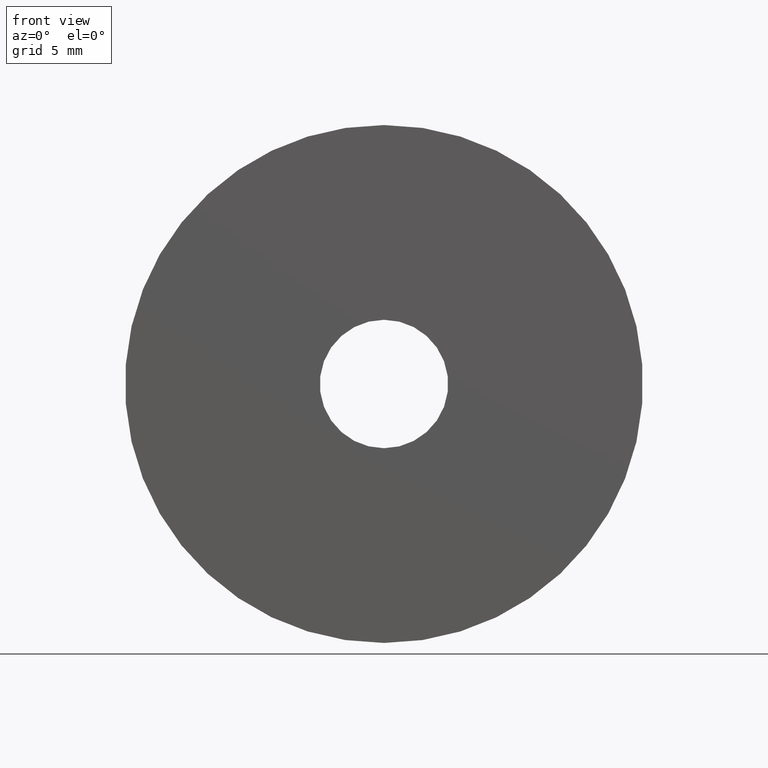
[diagram: clean part render]
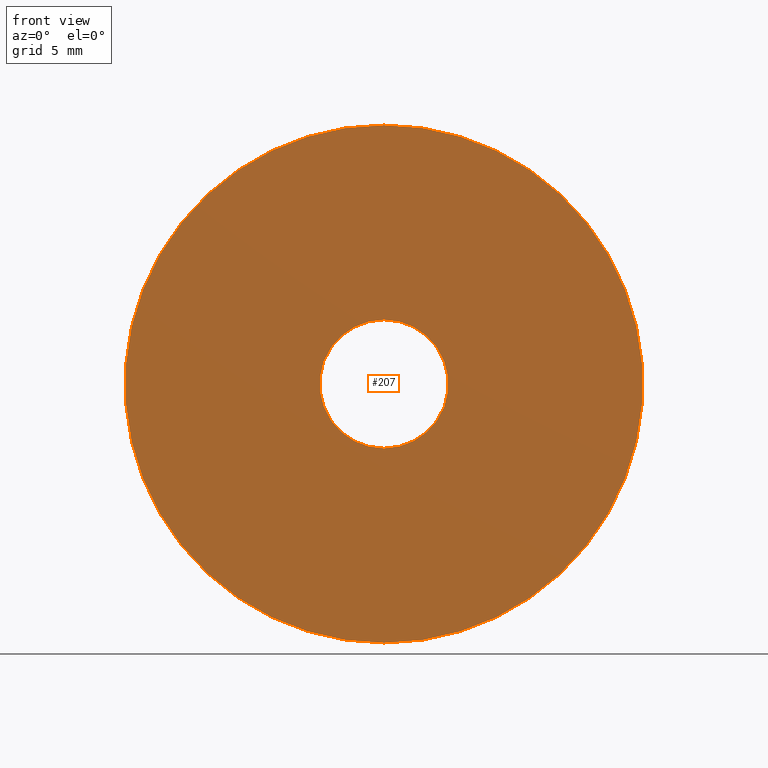
[diagram: same view with one face highlighted and labeled with its STEP entity id]
A machine part, front view. The second image highlights one B-rep face of the part: STEP entity #207.
In plain terms, the highlighted planar face has unit normal (0, 1, 0).
Its self-contained STEP definition (entity closure, byte-faithful):
#9 = ORIENTED_EDGE ( 'NONE', *, *, #94, .F. ) ;
#15 = CIRCLE ( 'NONE', #194, 12.50000000000000000 ) ;
#17 = DIRECTION ( 'NONE',  ( 0.000000000000000000, -0.000000000000000000, 1.000000000000000000 ) ) ;
#18 = CARTESIAN_POINT ( 'NONE',  ( 0.000000000000000000, -0.05000000000000000278, 0.000000000000000000 ) ) ;
#25 = ORIENTED_EDGE ( 'NONE', *, *, #47, .T. ) ;
#35 = PLANE ( 'NONE',  #145 ) ;
#37 = VERTEX_POINT ( 'NONE', #66 ) ;
#47 = EDGE_CURVE ( 'NONE', #49, #221, #119, .T. ) ;
#48 = CARTESIAN_POINT ( 'NONE',  ( 1.530808498934191521E-15, -0.05000000000000000278, 12.50000000000000000 ) ) ;
#49 = VERTEX_POINT ( 'NONE', #242 ) ;
#55 = VERTEX_POINT ( 'NONE', #48 ) ;
#66 = CARTESIAN_POINT ( 'NONE',  ( 0.000000000000000000, -0.05000000000000000278, -12.50000000000000000 ) ) ;
#88 = DIRECTION ( 'NONE',  ( 0.000000000000000000, 1.000000000000000000, 0.000000000000000000 ) ) ;
#91 = DIRECTION ( 'NONE',  ( 0.000000000000000000, 0.000000000000000000, 1.000000000000000000 ) ) ;
#93 = DIRECTION ( 'NONE',  ( 0.000000000000000000, 1.000000000000000000, 0.000000000000000000 ) ) ;
#94 = EDGE_CURVE ( 'NONE', #37, #55, #15, .T. ) ;
#110 = DIRECTION ( 'NONE',  ( 0.000000000000000000, 1.000000000000000000, 0.000000000000000000 ) ) ;
#116 = DIRECTION ( 'NONE',  ( 0.000000000000000000, 0.000000000000000000, 1.000000000000000000 ) ) ;
#119 = CIRCLE ( 'NONE', #205, 3.100000000000000089 ) ;
#120 = DIRECTION ( 'NONE',  ( 0.000000000000000000, 1.000000000000000000, 0.000000000000000000 ) ) ;
#135 = ORIENTED_EDGE ( 'NONE', *, *, #226, .F. ) ;
#143 = FACE_BOUND ( 'NONE', #190, .T. ) ;
#145 = AXIS2_PLACEMENT_3D ( 'NONE', #227, #88, #17 ) ;
#146 = DIRECTION ( 'NONE',  ( 0.000000000000000000, 0.000000000000000000, 1.000000000000000000 ) ) ;
#164 = FACE_OUTER_BOUND ( 'NONE', #247, .T. ) ;
#172 = CARTESIAN_POINT ( 'NONE',  ( 0.000000000000000000, -0.05000000000000000278, 0.000000000000000000 ) ) ;
#183 = CIRCLE ( 'NONE', #240, 12.50000000000000000 ) ;
#184 = CARTESIAN_POINT ( 'NONE',  ( 0.000000000000000000, -0.05000000000000000278, 0.000000000000000000 ) ) ;
#190 = EDGE_LOOP ( 'NONE', ( #25, #241 ) ) ;
#194 = AXIS2_PLACEMENT_3D ( 'NONE', #172, #93, #116 ) ;
#205 = AXIS2_PLACEMENT_3D ( 'NONE', #220, #110, #91 ) ;
#206 = DIRECTION ( 'NONE',  ( 0.000000000000000000, 1.000000000000000000, 0.000000000000000000 ) ) ;
#207 = ADVANCED_FACE ( 'NONE', ( #143, #164 ), #35, .F. ) ;
#216 = EDGE_CURVE ( 'NONE', #221, #49, #249, .T. ) ;
#220 = CARTESIAN_POINT ( 'NONE',  ( 0.000000000000000000, -0.05000000000000000278, 0.000000000000000000 ) ) ;
#221 = VERTEX_POINT ( 'NONE', #222 ) ;
#222 = CARTESIAN_POINT ( 'NONE',  ( 3.796405077356794918E-16, -0.05000000000000000278, -3.100000000000000089 ) ) ;
#226 = EDGE_CURVE ( 'NONE', #55, #37, #183, .T. ) ;
#227 = CARTESIAN_POINT ( 'NONE',  ( 0.000000000000000000, -0.05000000000000000278, 0.000000000000000000 ) ) ;
#240 = AXIS2_PLACEMENT_3D ( 'NONE', #184, #206, #243 ) ;
#241 = ORIENTED_EDGE ( 'NONE', *, *, #216, .T. ) ;
#242 = CARTESIAN_POINT ( 'NONE',  ( 0.000000000000000000, -0.05000000000000000278, 3.100000000000000089 ) ) ;
#243 = DIRECTION ( 'NONE',  ( 0.000000000000000000, 0.000000000000000000, 1.000000000000000000 ) ) ;
#245 = AXIS2_PLACEMENT_3D ( 'NONE', #18, #120, #146 ) ;
#247 = EDGE_LOOP ( 'NONE', ( #9, #135 ) ) ;
#249 = CIRCLE ( 'NONE', #245, 3.100000000000000089 ) ;